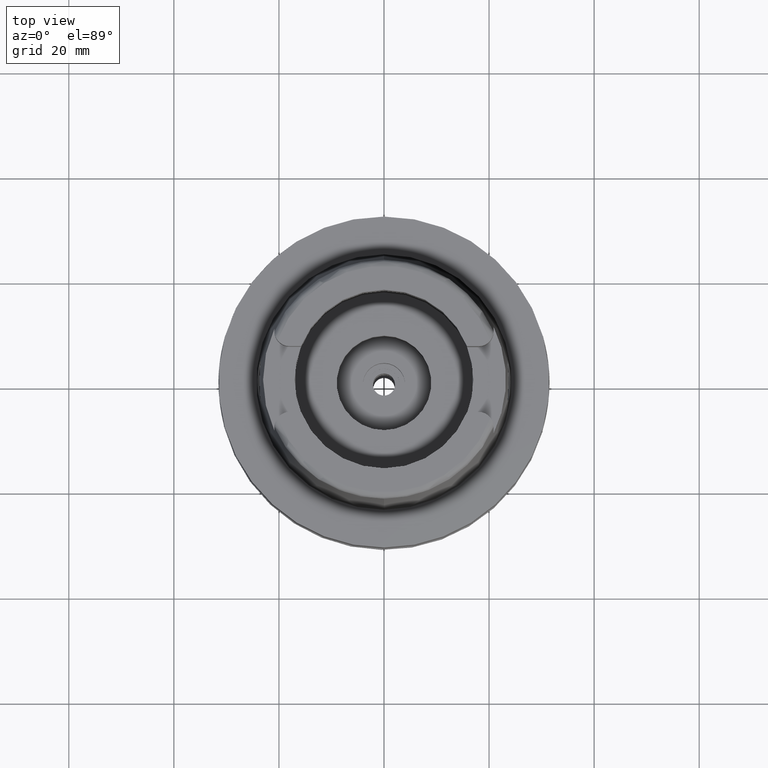
[diagram: clean part render]
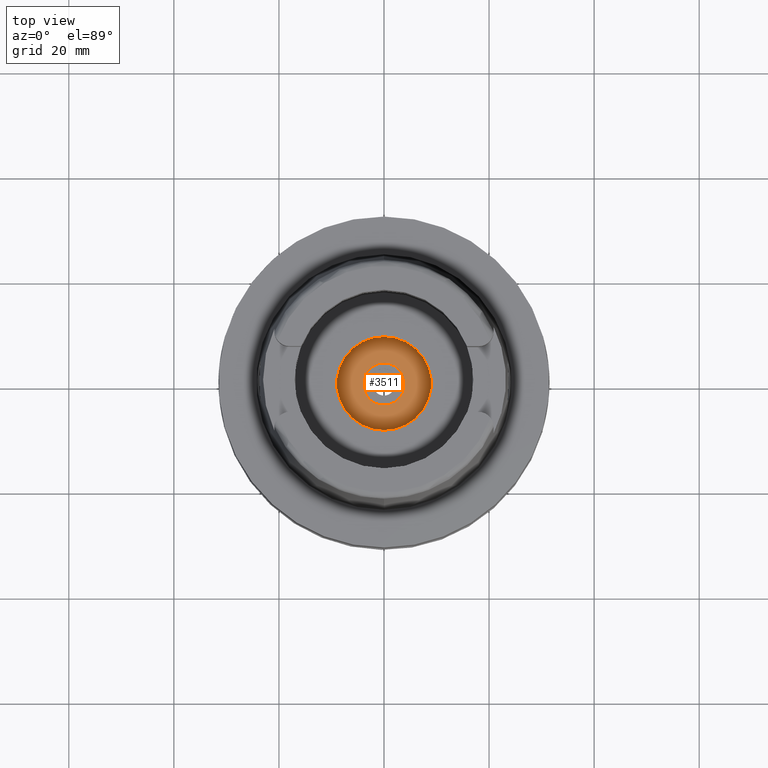
[diagram: same view with one face highlighted and labeled with its STEP entity id]
A machine part, top view. The second image highlights one B-rep face of the part: STEP entity #3511.
In plain terms, the highlighted planar face has unit normal (0, 0, -1).
Its self-contained STEP definition (entity closure, byte-faithful):
#139 = CARTESIAN_POINT ( 'NONE',  ( 0.0000000000000000000, 4.000000000000000000, -21.94999999999999929 ) ) ;
#379 = CIRCLE ( 'NONE', #1106, 9.000000000000000000 ) ;
#695 = CIRCLE ( 'NONE', #5161, 4.000000000000000000 ) ;
#735 = CARTESIAN_POINT ( 'NONE',  ( 0.0000000000000000000, 1.679603085030999862E-14, -21.94999999999999929 ) ) ;
#845 = DIRECTION ( 'NONE',  ( 0.0000000000000000000, -1.000000000000000000, 0.0000000000000000000 ) ) ;
#897 = EDGE_LOOP ( 'NONE', ( #1386, #4446 ) ) ;
#993 = DIRECTION ( 'NONE',  ( 0.0000000000000000000, 0.0000000000000000000, 1.000000000000000000 ) ) ;
#1106 = AXIS2_PLACEMENT_3D ( 'NONE', #3948, #3970, #2233 ) ;
#1199 = CIRCLE ( 'NONE', #4020, 4.000000000000000000 ) ;
#1386 = ORIENTED_EDGE ( 'NONE', *, *, #5211, .F. ) ;
#1540 = EDGE_CURVE ( 'NONE', #1649, #2544, #695, .T. ) ;
#1563 = DIRECTION ( 'NONE',  ( 0.0000000000000000000, 1.000000000000000000, 0.0000000000000000000 ) ) ;
#1611 = FACE_OUTER_BOUND ( 'NONE', #897, .T. ) ;
#1649 = VERTEX_POINT ( 'NONE', #4562 ) ;
#1760 = DIRECTION ( 'NONE',  ( 0.0000000000000000000, -1.000000000000000000, 0.0000000000000000000 ) ) ;
#1781 = EDGE_CURVE ( 'NONE', #1925, #2801, #4250, .T. ) ;
#1865 = AXIS2_PLACEMENT_3D ( 'NONE', #735, #3362, #2937 ) ;
#1925 = VERTEX_POINT ( 'NONE', #2186 ) ;
#2186 = CARTESIAN_POINT ( 'NONE',  ( 0.0000000000000000000, -9.000000000000000000, -21.94999999999999929 ) ) ;
#2224 = AXIS2_PLACEMENT_3D ( 'NONE', #5558, #3504, #845 ) ;
#2233 = DIRECTION ( 'NONE',  ( 0.0000000000000000000, 1.000000000000000000, 0.0000000000000000000 ) ) ;
#2489 = EDGE_LOOP ( 'NONE', ( #2582, #4184 ) ) ;
#2544 = VERTEX_POINT ( 'NONE', #139 ) ;
#2582 = ORIENTED_EDGE ( 'NONE', *, *, #5565, .F. ) ;
#2799 = CARTESIAN_POINT ( 'NONE',  ( 0.0000000000000000000, 1.679603085030999862E-14, -21.94999999999999929 ) ) ;
#2801 = VERTEX_POINT ( 'NONE', #4249 ) ;
#2937 = DIRECTION ( 'NONE',  ( 0.0000000000000000000, -1.000000000000000000, 0.0000000000000000000 ) ) ;
#3359 = FACE_BOUND ( 'NONE', #2489, .T. ) ;
#3362 = DIRECTION ( 'NONE',  ( 0.0000000000000000000, 0.0000000000000000000, -1.000000000000000000 ) ) ;
#3504 = DIRECTION ( 'NONE',  ( 0.0000000000000000000, 0.0000000000000000000, -1.000000000000000000 ) ) ;
#3511 = ADVANCED_FACE ( 'NONE', ( #1611, #3359 ), #3818, .F. ) ;
#3517 = CARTESIAN_POINT ( 'NONE',  ( 0.0000000000000000000, 1.679603085030999862E-14, -21.94999999999999929 ) ) ;
#3818 = PLANE ( 'NONE',  #2224 ) ;
#3948 = CARTESIAN_POINT ( 'NONE',  ( 0.0000000000000000000, 1.679603085030999862E-14, -21.94999999999999929 ) ) ;
#3970 = DIRECTION ( 'NONE',  ( 0.0000000000000000000, 0.0000000000000000000, -1.000000000000000000 ) ) ;
#4020 = AXIS2_PLACEMENT_3D ( 'NONE', #2799, #4173, #1563 ) ;
#4173 = DIRECTION ( 'NONE',  ( 0.0000000000000000000, 0.0000000000000000000, 1.000000000000000000 ) ) ;
#4184 = ORIENTED_EDGE ( 'NONE', *, *, #1540, .F. ) ;
#4249 = CARTESIAN_POINT ( 'NONE',  ( 0.0000000000000000000, 9.000000000000000000, -21.94999999999999929 ) ) ;
#4250 = CIRCLE ( 'NONE', #1865, 9.000000000000000000 ) ;
#4446 = ORIENTED_EDGE ( 'NONE', *, *, #1781, .F. ) ;
#4562 = CARTESIAN_POINT ( 'NONE',  ( 0.0000000000000000000, -4.000000000000000000, -21.94999999999999929 ) ) ;
#5161 = AXIS2_PLACEMENT_3D ( 'NONE', #3517, #993, #1760 ) ;
#5211 = EDGE_CURVE ( 'NONE', #2801, #1925, #379, .T. ) ;
#5558 = CARTESIAN_POINT ( 'NONE',  ( 0.0000000000000000000, 0.0000000000000000000, -21.94999999999999929 ) ) ;
#5565 = EDGE_CURVE ( 'NONE', #2544, #1649, #1199, .T. ) ;